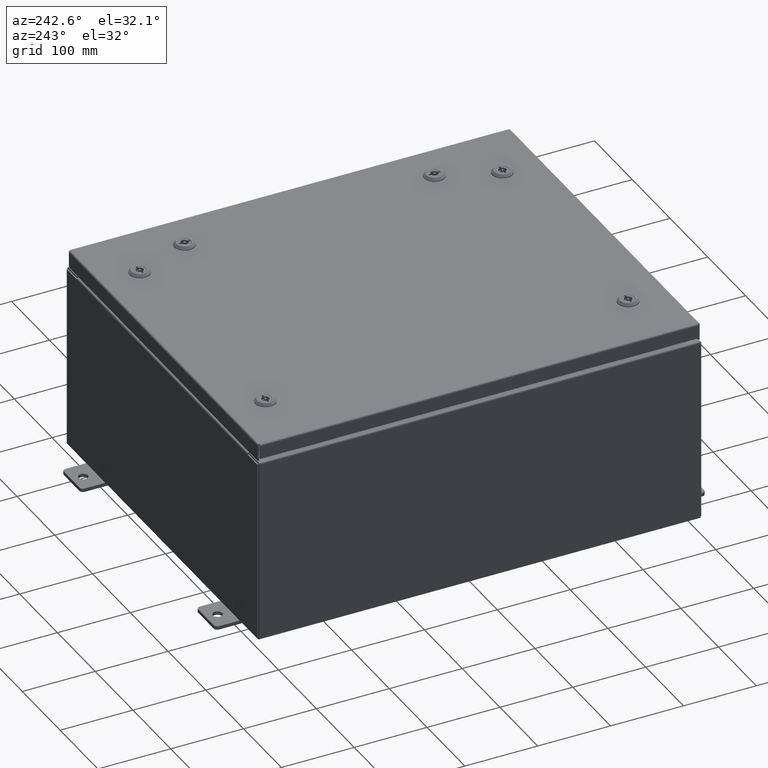
[diagram: clean part render]
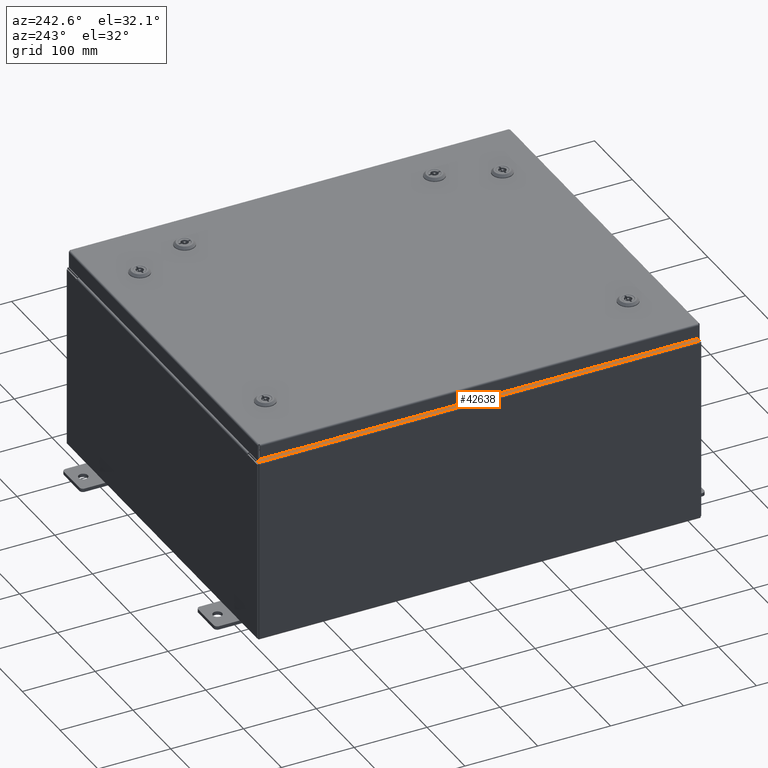
[diagram: same view with one face highlighted and labeled with its STEP entity id]
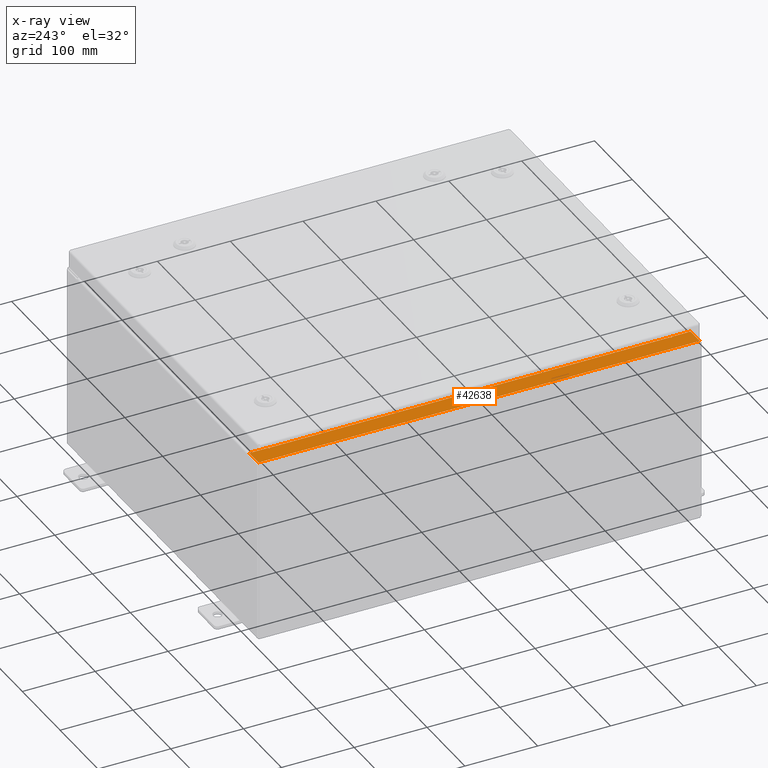
[diagram: x-ray of the same camera — body ghosted, the highlighted face saturated]
A machine part, auxiliary view. The second image highlights one B-rep face of the part: STEP entity #42638.
The next image is the same camera in x-ray: the body ghosted, the highlighted face saturated — about 0% of this face is hidden behind the body in this view.
In plain terms, the highlighted planar face has unit normal (0, 0, -1).
Its self-contained STEP definition (entity closure, byte-faithful):
#171 = VERTEX_POINT ( 'NONE', #10056 ) ;
#199 = VECTOR ( 'NONE', #36748, 39.37007874015748100 ) ;
#1072 = CARTESIAN_POINT ( 'NONE',  ( -9.912300000000035600, -11.92529999999999500, 9.925299999999998200 ) ) ;
#1259 = AXIS2_PLACEMENT_3D ( 'NONE', #44310, #14955, #49267 ) ;
#2291 = ORIENTED_EDGE ( 'NONE', *, *, #27812, .F. ) ;
#3393 = VERTEX_POINT ( 'NONE', #60699 ) ;
#3492 = ORIENTED_EDGE ( 'NONE', *, *, #30841, .T. ) ;
#3560 = CARTESIAN_POINT ( 'NONE',  ( -8.949700000000035500, 10.88110000000000000, 9.925300000000007100 ) ) ;
#5325 = DIRECTION ( 'NONE',  ( -1.000000000000000000, 0.0000000000000000000, 0.0000000000000000000 ) ) ;
#5355 = VECTOR ( 'NONE', #21271, 39.37007874015748100 ) ;
#5814 = EDGE_CURVE ( 'NONE', #48640, #50222, #42046, .T. ) ;
#6971 = VECTOR ( 'NONE', #5325, 39.37007874015748100 ) ;
#7376 = CARTESIAN_POINT ( 'NONE',  ( -6.248265595795515600E-014, -11.92529999999997700, 9.925300000000087100 ) ) ;
#7714 = LINE ( 'NONE', #62378, #33792 ) ;
#8029 = FACE_OUTER_BOUND ( 'NONE', #35860, .T. ) ;
#8356 = DIRECTION ( 'NONE',  ( -6.427586101948161900E-031, 1.000000000000000000, -5.759471323234565800E-045 ) ) ;
#8696 = ORIENTED_EDGE ( 'NONE', *, *, #8708, .F. ) ;
#8708 = EDGE_CURVE ( 'NONE', #47259, #3393, #40475, .T. ) ;
#10056 = CARTESIAN_POINT ( 'NONE',  ( -8.949700000000035500, -11.92529999999999500, 9.925300000000007100 ) ) ;
#10745 = VECTOR ( 'NONE', #60554, 39.37007874015748100 ) ;
#11090 = DIRECTION ( 'NONE',  ( 8.960551024729027700E-015, 0.0000000000000000000, -1.000000000000000000 ) ) ;
#12604 = LINE ( 'NONE', #60545, #40213 ) ;
#13085 = EDGE_CURVE ( 'NONE', #3393, #29476, #12604, .T. ) ;
#13477 = CARTESIAN_POINT ( 'NONE',  ( -9.000050000000035400, -10.86242499999999100, 9.925300000000007100 ) ) ;
#14036 = DIRECTION ( 'NONE',  ( -6.427586101948161900E-031, 1.000000000000000000, -5.759471323234565800E-045 ) ) ;
#14955 = DIRECTION ( 'NONE',  ( -8.960551024729027700E-015, -0.0000000000000000000, 1.000000000000000000 ) ) ;
#15093 = CARTESIAN_POINT ( 'NONE',  ( -9.912300000000035600, 11.92530000000000000, 9.925299999999998200 ) ) ;
#16697 = CARTESIAN_POINT ( 'NONE',  ( -8.962700000000035400, 10.84375000000000200, 9.925300000000007100 ) ) ;
#17646 = CIRCLE ( 'NONE', #52372, 0.01867499999999949400 ) ;
#18387 = DIRECTION ( 'NONE',  ( 1.000000000000000000, 0.0000000000000000000, 0.0000000000000000000 ) ) ;
#19033 = ORIENTED_EDGE ( 'NONE', *, *, #46142, .F. ) ;
#20059 = ORIENTED_EDGE ( 'NONE', *, *, #13085, .F. ) ;
#21057 = EDGE_CURVE ( 'NONE', #35365, #33640, #25787, .T. ) ;
#21111 = ORIENTED_EDGE ( 'NONE', *, *, #63089, .F. ) ;
#21271 = DIRECTION ( 'NONE',  ( -1.000000000000000000, -2.052683231367953500E-031, -8.960551024729027700E-015 ) ) ;
#22003 = CARTESIAN_POINT ( 'NONE',  ( -8.949700000000035500, -10.88109999999999100, 9.925300000000007100 ) ) ;
#23330 = CARTESIAN_POINT ( 'NONE',  ( -9.000050000000035400, 10.88110000000000000, 9.925300000000007100 ) ) ;
#23828 = CARTESIAN_POINT ( 'NONE',  ( -9.912300000000035600, 11.92530000000000000, 9.925299999999998200 ) ) ;
#24393 = DIRECTION ( 'NONE',  ( -0.0000000000000000000, -1.000000000000000000, -0.0000000000000000000 ) ) ;
#25787 = LINE ( 'NONE', #15093, #63403 ) ;
#26240 = LINE ( 'NONE', #7376, #199 ) ;
#27812 = EDGE_CURVE ( 'NONE', #29476, #29185, #17646, .T. ) ;
#27899 = CARTESIAN_POINT ( 'NONE',  ( -8.949700000000035500, 11.92530000000000000, 9.925300000000007100 ) ) ;
#28688 = EDGE_CURVE ( 'NONE', #29185, #45947, #49851, .T. ) ;
#29010 = VECTOR ( 'NONE', #14036, 39.37007874015748100 ) ;
#29185 = VERTEX_POINT ( 'NONE', #53543 ) ;
#29476 = VERTEX_POINT ( 'NONE', #51147 ) ;
#30841 = EDGE_CURVE ( 'NONE', #50222, #33640, #44439, .T. ) ;
#30925 = CARTESIAN_POINT ( 'NONE',  ( -8.919697074175538700E-014, 11.92530000000000000, 9.925300000000087100 ) ) ;
#31194 = CARTESIAN_POINT ( 'NONE',  ( -9.000050000000035400, -10.88109999999999100, 9.925300000000007100 ) ) ;
#31609 = DIRECTION ( 'NONE',  ( -1.000000000000000000, 0.0000000000000000000, 0.0000000000000000000 ) ) ;
#33373 = EDGE_CURVE ( 'NONE', #35365, #171, #26240, .T. ) ;
#33640 = VERTEX_POINT ( 'NONE', #23828 ) ;
#33792 = VECTOR ( 'NONE', #8356, 39.37007874015748100 ) ;
#34080 = AXIS2_PLACEMENT_3D ( 'NONE', #54818, #11090, #45352 ) ;
#34667 = CARTESIAN_POINT ( 'NONE',  ( -8.949700000000035500, 10.88110000000000000, 9.925300000000007100 ) ) ;
#34930 = EDGE_CURVE ( 'NONE', #171, #45947, #7714, .T. ) ;
#34939 = VECTOR ( 'NONE', #52622, 39.37007874015748100 ) ;
#35365 = VERTEX_POINT ( 'NONE', #1072 ) ;
#35860 = EDGE_LOOP ( 'NONE', ( #21111, #43458, #3492, #63598, #49734, #58853, #37183, #2291, #20059, #8696, #19033, #50086 ) ) ;
#36748 = DIRECTION ( 'NONE',  ( 1.000000000000000000, 2.240137756182257300E-015, 8.960551024729027700E-015 ) ) ;
#37183 = ORIENTED_EDGE ( 'NONE', *, *, #28688, .F. ) ;
#38248 = CARTESIAN_POINT ( 'NONE',  ( -9.000050000000035400, 10.84375000000000200, 9.925300000000007100 ) ) ;
#40213 = VECTOR ( 'NONE', #31609, 39.37007874015748100 ) ;
#40475 = LINE ( 'NONE', #53792, #50436 ) ;
#42046 = LINE ( 'NONE', #43393, #29010 ) ;
#42050 = CARTESIAN_POINT ( 'NONE',  ( -9.000050000000035400, 10.84375000000000200, 9.925300000000007100 ) ) ;
#42458 = EDGE_CURVE ( 'NONE', #57291, #46652, #50229, .T. ) ;
#42638 = ADVANCED_FACE ( 'NONE', ( #8029 ), #59947, .F. ) ;
#43393 = CARTESIAN_POINT ( 'NONE',  ( -8.949700000000035500, -5.752496733660511000E-030, 9.925300000000007100 ) ) ;
#43458 = ORIENTED_EDGE ( 'NONE', *, *, #5814, .T. ) ;
#44310 = CARTESIAN_POINT ( 'NONE',  ( -9.000050000000035400, 10.86242500000000000, 9.925300000000007100 ) ) ;
#44439 = LINE ( 'NONE', #30925, #5355 ) ;
#44530 = LINE ( 'NONE', #34667, #6971 ) ;
#45352 = DIRECTION ( 'NONE',  ( -1.000000000000000000, 0.0000000000000000000, -8.960551024729027700E-015 ) ) ;
#45947 = VERTEX_POINT ( 'NONE', #22003 ) ;
#46142 = EDGE_CURVE ( 'NONE', #46652, #47259, #61012, .T. ) ;
#46652 = VERTEX_POINT ( 'NONE', #42050 ) ;
#47259 = VERTEX_POINT ( 'NONE', #16697 ) ;
#47790 = DIRECTION ( 'NONE',  ( -8.960551024729027700E-015, -0.0000000000000000000, 1.000000000000000000 ) ) ;
#48640 = VERTEX_POINT ( 'NONE', #3560 ) ;
#49267 = DIRECTION ( 'NONE',  ( 1.000000000000000000, 0.0000000000000000000, 0.0000000000000000000 ) ) ;
#49734 = ORIENTED_EDGE ( 'NONE', *, *, #33373, .T. ) ;
#49851 = LINE ( 'NONE', #31194, #10745 ) ;
#50086 = ORIENTED_EDGE ( 'NONE', *, *, #42458, .F. ) ;
#50222 = VERTEX_POINT ( 'NONE', #27899 ) ;
#50229 = CIRCLE ( 'NONE', #1259, 0.01867499999999949400 ) ;
#50436 = VECTOR ( 'NONE', #24393, 39.37007874015748100 ) ;
#51147 = CARTESIAN_POINT ( 'NONE',  ( -9.000050000000035400, -10.84374999999999300, 9.925300000000007100 ) ) ;
#52372 = AXIS2_PLACEMENT_3D ( 'NONE', #13477, #47790, #18387 ) ;
#52622 = DIRECTION ( 'NONE',  ( 1.000000000000000000, 0.0000000000000000000, 0.0000000000000000000 ) ) ;
#53543 = CARTESIAN_POINT ( 'NONE',  ( -9.000050000000035400, -10.88109999999999100, 9.925300000000007100 ) ) ;
#53792 = CARTESIAN_POINT ( 'NONE',  ( -8.962700000000035400, 10.84375000000000200, 9.925300000000007100 ) ) ;
#54818 = CARTESIAN_POINT ( 'NONE',  ( -8.919697074175538700E-014, 0.0000000000000000000, 9.925300000000087100 ) ) ;
#57291 = VERTEX_POINT ( 'NONE', #23330 ) ;
#58837 = DIRECTION ( 'NONE',  ( -0.0000000000000000000, 1.000000000000000000, -0.0000000000000000000 ) ) ;
#58853 = ORIENTED_EDGE ( 'NONE', *, *, #34930, .T. ) ;
#59947 = PLANE ( 'NONE',  #34080 ) ;
#60545 = CARTESIAN_POINT ( 'NONE',  ( -8.962700000000035400, -10.84374999999999300, 9.925300000000007100 ) ) ;
#60554 = DIRECTION ( 'NONE',  ( 1.000000000000000000, 0.0000000000000000000, 0.0000000000000000000 ) ) ;
#60699 = CARTESIAN_POINT ( 'NONE',  ( -8.962700000000035400, -10.84374999999999300, 9.925300000000007100 ) ) ;
#61012 = LINE ( 'NONE', #38248, #34939 ) ;
#62378 = CARTESIAN_POINT ( 'NONE',  ( -8.949700000000035500, -5.752496733660511000E-030, 9.925300000000007100 ) ) ;
#63089 = EDGE_CURVE ( 'NONE', #48640, #57291, #44530, .T. ) ;
#63403 = VECTOR ( 'NONE', #58837, 39.37007874015748100 ) ;
#63598 = ORIENTED_EDGE ( 'NONE', *, *, #21057, .F. ) ;